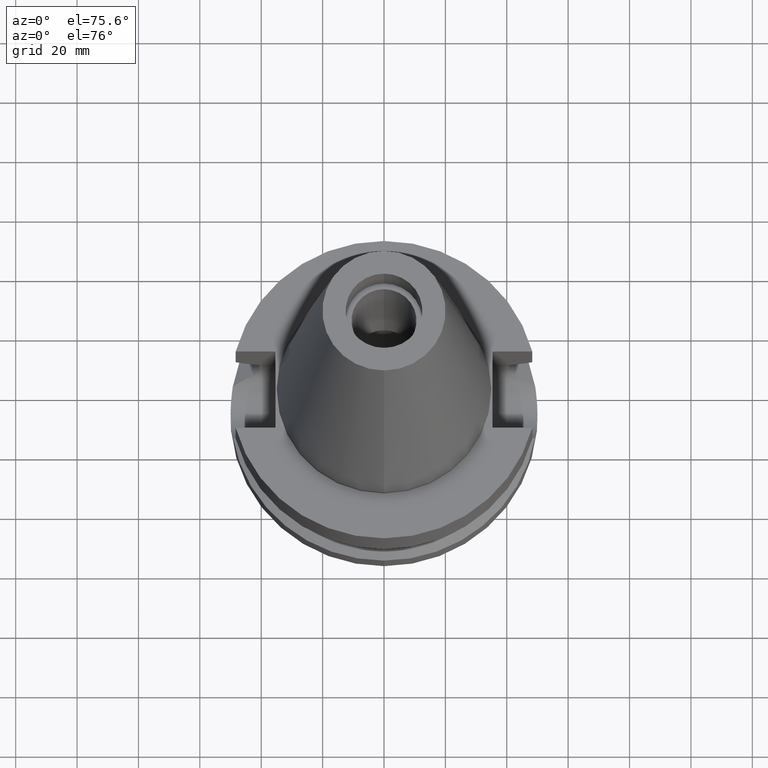
[diagram: clean part render]
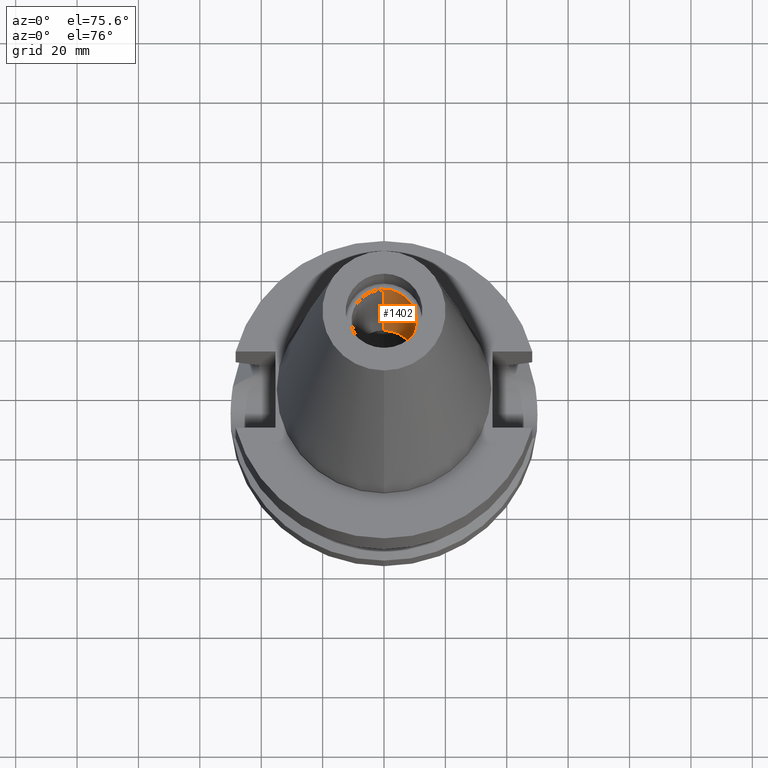
[diagram: same view with one face highlighted and labeled with its STEP entity id]
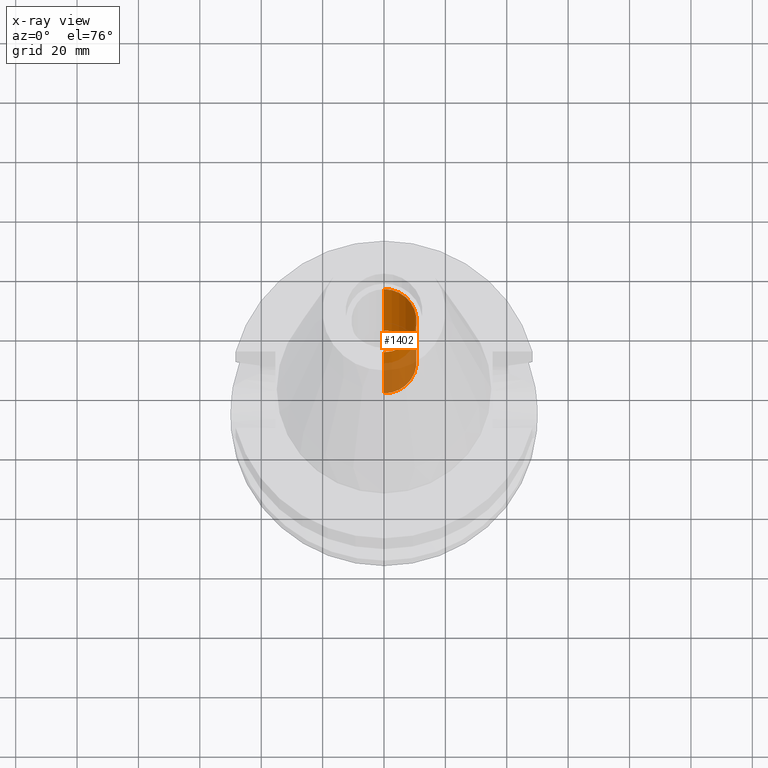
[diagram: x-ray of the same camera — body ghosted, the highlighted face saturated]
A machine part, auxiliary view. The second image highlights one B-rep face of the part: STEP entity #1402.
The next image is the same camera in x-ray: the body ghosted, the highlighted face saturated — about 38% of this face is hidden behind the body in this view.
In plain terms, the highlighted cylindrical surface (edge-blend (fillet) strip) has radius 10.6 mm, axis along (0, 0, -1).
Its self-contained STEP definition (entity closure, byte-faithful):
#52 = AXIS2_PLACEMENT_3D ( 'NONE', #893, #1656, #1825 ) ;
#103 = EDGE_CURVE ( 'NONE', #186, #2251, #2955, .T. ) ;
#186 = VERTEX_POINT ( 'NONE', #1344 ) ;
#314 = VERTEX_POINT ( 'NONE', #736 ) ;
#322 = ORIENTED_EDGE ( 'NONE', *, *, #1989, .T. ) ;
#346 = CARTESIAN_POINT ( 'NONE',  ( 0.0000000000000000000, -10.59999999999999964, 34.79999999999999716 ) ) ;
#438 = CARTESIAN_POINT ( 'NONE',  ( 0.0000000000000000000, 2.581739149621999642E-14, 110.8149999999999977 ) ) ;
#480 = VERTEX_POINT ( 'NONE', #346 ) ;
#483 = CYLINDRICAL_SURFACE ( 'NONE', #721, 10.59999999999999964 ) ;
#520 = AXIS2_PLACEMENT_3D ( 'NONE', #2993, #1143, #2080 ) ;
#547 = EDGE_CURVE ( 'NONE', #314, #2251, #2738, .T. ) ;
#629 = LINE ( 'NONE', #863, #2847 ) ;
#713 = FACE_OUTER_BOUND ( 'NONE', #2574, .T. ) ;
#721 = AXIS2_PLACEMENT_3D ( 'NONE', #438, #2768, #2341 ) ;
#736 = CARTESIAN_POINT ( 'NONE',  ( 0.0000000000000000000, -10.59999999999999964, 88.79999999999999716 ) ) ;
#766 = VECTOR ( 'NONE', #1554, 1000.000000000000000 ) ;
#863 = CARTESIAN_POINT ( 'NONE',  ( 0.0000000000000000000, -10.59999999999999964, 34.79999999999999716 ) ) ;
#893 = CARTESIAN_POINT ( 'NONE',  ( 0.0000000000000000000, 2.581739149621999642E-14, 34.79999999999999716 ) ) ;
#989 = ORIENTED_EDGE ( 'NONE', *, *, #1926, .T. ) ;
#1143 = DIRECTION ( 'NONE',  ( 0.0000000000000000000, 0.0000000000000000000, 1.000000000000000000 ) ) ;
#1344 = CARTESIAN_POINT ( 'NONE',  ( 0.0000000000000000000, 10.59999999999999964, 34.79999999999999716 ) ) ;
#1402 = ADVANCED_FACE ( 'NONE', ( #713 ), #483, .F. ) ;
#1554 = DIRECTION ( 'NONE',  ( 0.0000000000000000000, 0.0000000000000000000, 1.000000000000000000 ) ) ;
#1580 = DIRECTION ( 'NONE',  ( 0.0000000000000000000, 0.0000000000000000000, 1.000000000000000000 ) ) ;
#1656 = DIRECTION ( 'NONE',  ( 0.0000000000000000000, 0.0000000000000000000, -1.000000000000000000 ) ) ;
#1788 = CARTESIAN_POINT ( 'NONE',  ( 0.0000000000000000000, 10.59999999999999964, 34.79999999999999716 ) ) ;
#1825 = DIRECTION ( 'NONE',  ( 0.0000000000000000000, 1.000000000000000000, 0.0000000000000000000 ) ) ;
#1839 = ORIENTED_EDGE ( 'NONE', *, *, #547, .T. ) ;
#1926 = EDGE_CURVE ( 'NONE', #480, #314, #629, .T. ) ;
#1989 = EDGE_CURVE ( 'NONE', #186, #480, #2305, .T. ) ;
#2080 = DIRECTION ( 'NONE',  ( 0.0000000000000000000, -1.000000000000000000, 0.0000000000000000000 ) ) ;
#2192 = CARTESIAN_POINT ( 'NONE',  ( 0.0000000000000000000, 10.59999999999999964, 88.79999999999999716 ) ) ;
#2251 = VERTEX_POINT ( 'NONE', #2192 ) ;
#2305 = CIRCLE ( 'NONE', #52, 10.59999999999999964 ) ;
#2341 = DIRECTION ( 'NONE',  ( 0.0000000000000000000, -1.000000000000000000, 0.0000000000000000000 ) ) ;
#2574 = EDGE_LOOP ( 'NONE', ( #322, #989, #1839, #2919 ) ) ;
#2738 = CIRCLE ( 'NONE', #520, 10.59999999999999964 ) ;
#2768 = DIRECTION ( 'NONE',  ( 0.0000000000000000000, 0.0000000000000000000, -1.000000000000000000 ) ) ;
#2847 = VECTOR ( 'NONE', #1580, 1000.000000000000000 ) ;
#2919 = ORIENTED_EDGE ( 'NONE', *, *, #103, .F. ) ;
#2955 = LINE ( 'NONE', #1788, #766 ) ;
#2993 = CARTESIAN_POINT ( 'NONE',  ( 0.0000000000000000000, 2.581739149621999642E-14, 88.79999999999999716 ) ) ;